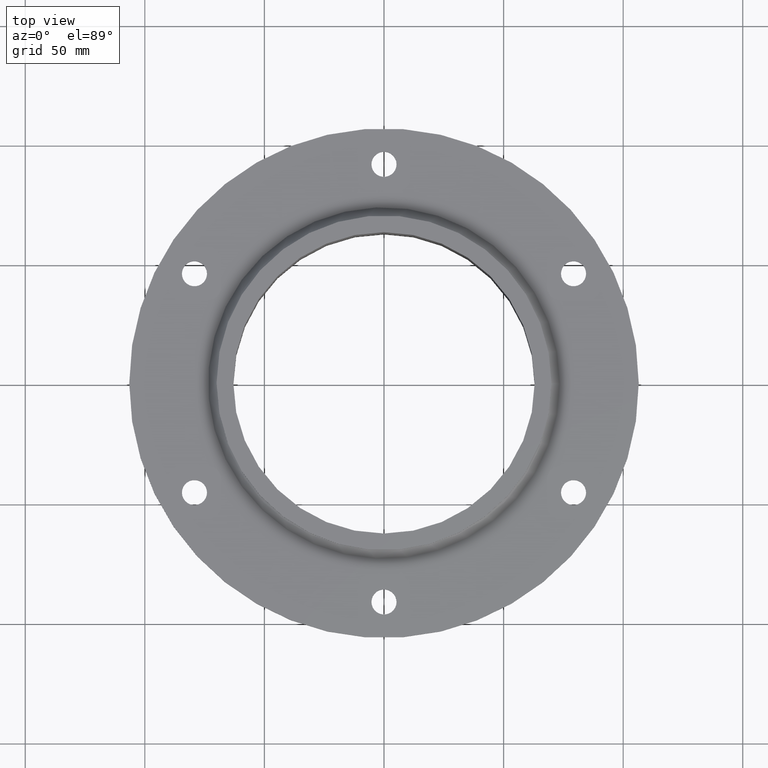
[diagram: clean part render]
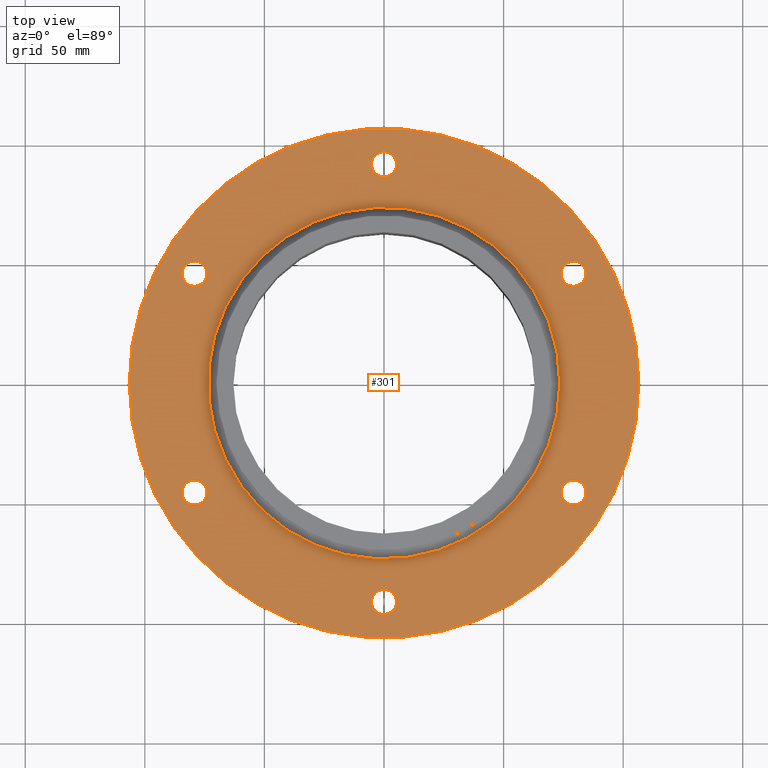
[diagram: same view with one face highlighted and labeled with its STEP entity id]
A machine part, top view. The second image highlights one B-rep face of the part: STEP entity #301.
In plain terms, the highlighted planar face has unit normal (0, 0, 1).
Its self-contained STEP definition (entity closure, byte-faithful):
#84=CARTESIAN_POINT('',(-73.991324446276138,-45.749999999999972,-6.000000000000002));
#85=VERTEX_POINT('',#84);
#86=CARTESIAN_POINT('',(-79.241324446276138,-45.749999999999972,-6.000000000000014));
#87=DIRECTION('',(0.0,0.0,-1.0));
#88=DIRECTION('',(1.0,0.0,0.0));
#89=AXIS2_PLACEMENT_3D('',#86,#87,#88);
#90=CIRCLE('',#89,5.25);
#91=EDGE_CURVE('',#85,#85,#90,.T.);
#112=CARTESIAN_POINT('',(84.491324446276096,-45.750000000000036,-6.000000000000002));
#113=VERTEX_POINT('',#112);
#114=CARTESIAN_POINT('',(79.241324446276096,-45.750000000000036,-6.000000000000014));
#115=DIRECTION('',(0.0,0.0,-1.0));
#116=DIRECTION('',(1.0,0.0,0.0));
#117=AXIS2_PLACEMENT_3D('',#114,#115,#116);
#118=CIRCLE('',#117,5.25);
#119=EDGE_CURVE('',#113,#113,#118,.T.);
#140=CARTESIAN_POINT('',(5.25,91.5,-6.000000000000002));
#141=VERTEX_POINT('',#140);
#142=CARTESIAN_POINT('',(0.0,91.5,-6.000000000000014));
#143=DIRECTION('',(0.0,0.0,-1.0));
#144=DIRECTION('',(1.0,0.0,0.0));
#145=AXIS2_PLACEMENT_3D('',#142,#143,#144);
#146=CIRCLE('',#145,5.25);
#147=EDGE_CURVE('',#141,#141,#146,.T.);
#168=CARTESIAN_POINT('',(84.491324446276195,45.749999999999943,-6.000000000000002));
#169=VERTEX_POINT('',#168);
#170=CARTESIAN_POINT('',(79.241324446276181,45.749999999999943,-6.000000000000014));
#171=DIRECTION('',(0.0,0.0,-1.0));
#172=DIRECTION('',(1.0,0.0,0.0));
#173=AXIS2_PLACEMENT_3D('',#170,#171,#172);
#174=CIRCLE('',#173,5.25);
#175=EDGE_CURVE('',#169,#169,#174,.T.);
#196=CARTESIAN_POINT('',(5.249999999999982,-91.500000000000043,-6.000000000000002));
#197=VERTEX_POINT('',#196);
#198=CARTESIAN_POINT('',(-1.776357E-014,-91.500000000000043,-6.000000000000014));
#199=DIRECTION('',(0.0,0.0,-1.0));
#200=DIRECTION('',(1.0,0.0,0.0));
#201=AXIS2_PLACEMENT_3D('',#198,#199,#200);
#202=CIRCLE('',#201,5.25);
#203=EDGE_CURVE('',#197,#197,#202,.T.);
#224=CARTESIAN_POINT('',(-73.991324446276138,45.750000000000021,-6.000000000000002));
#225=VERTEX_POINT('',#224);
#226=CARTESIAN_POINT('',(-79.241324446276138,45.750000000000021,-6.000000000000014));
#227=DIRECTION('',(0.0,0.0,-1.0));
#228=DIRECTION('',(1.0,0.0,0.0));
#229=AXIS2_PLACEMENT_3D('',#226,#227,#228);
#230=CIRCLE('',#229,5.25);
#231=EDGE_CURVE('',#225,#225,#230,.T.);
#241=CARTESIAN_POINT('',(73.5,9.001154E-015,-6.000000000000002));
#242=VERTEX_POINT('',#241);
#243=CARTESIAN_POINT('',(0.0,0.0,-6.000000000000002));
#244=DIRECTION('',(0.0,0.0,1.0));
#245=DIRECTION('',(-1.0,0.0,0.0));
#246=AXIS2_PLACEMENT_3D('',#243,#244,#245);
#247=CIRCLE('',#246,73.5);
#248=EDGE_CURVE('',#242,#242,#247,.T.);
#264=CARTESIAN_POINT('',(-5.534716E-015,-2.223921E-015,-6.000000000000002));
#265=DIRECTION('',(0.0,0.0,1.0));
#266=DIRECTION('',(1.0,0.0,0.0));
#267=AXIS2_PLACEMENT_3D('',#264,#265,#266);
#268=PLANE('',#267);
#269=CARTESIAN_POINT('',(106.5,1.304249E-014,-6.000000000000002));
#270=VERTEX_POINT('',#269);
#271=CARTESIAN_POINT('',(0.0,0.0,-6.000000000000002));
#272=DIRECTION('',(0.0,0.0,1.0));
#273=DIRECTION('',(-1.0,0.0,0.0));
#274=AXIS2_PLACEMENT_3D('',#271,#272,#273);
#275=CIRCLE('',#274,106.5);
#276=EDGE_CURVE('',#270,#270,#275,.T.);
#277=ORIENTED_EDGE('',*,*,#276,.T.);
#278=EDGE_LOOP('',(#277));
#279=FACE_OUTER_BOUND('',#278,.T.);
#280=ORIENTED_EDGE('',*,*,#91,.T.);
#281=EDGE_LOOP('',(#280));
#282=FACE_BOUND('',#281,.T.);
#283=ORIENTED_EDGE('',*,*,#119,.T.);
#284=EDGE_LOOP('',(#283));
#285=FACE_BOUND('',#284,.T.);
#286=ORIENTED_EDGE('',*,*,#147,.T.);
#287=EDGE_LOOP('',(#286));
#288=FACE_BOUND('',#287,.T.);
#289=ORIENTED_EDGE('',*,*,#175,.T.);
#290=EDGE_LOOP('',(#289));
#291=FACE_BOUND('',#290,.T.);
#292=ORIENTED_EDGE('',*,*,#203,.T.);
#293=EDGE_LOOP('',(#292));
#294=FACE_BOUND('',#293,.T.);
#295=ORIENTED_EDGE('',*,*,#231,.T.);
#296=EDGE_LOOP('',(#295));
#297=FACE_BOUND('',#296,.T.);
#298=ORIENTED_EDGE('',*,*,#248,.F.);
#299=EDGE_LOOP('',(#298));
#300=FACE_BOUND('',#299,.T.);
#301=ADVANCED_FACE('',(#279,#282,#285,#288,#291,#294,#297,#300),#268,.T.);